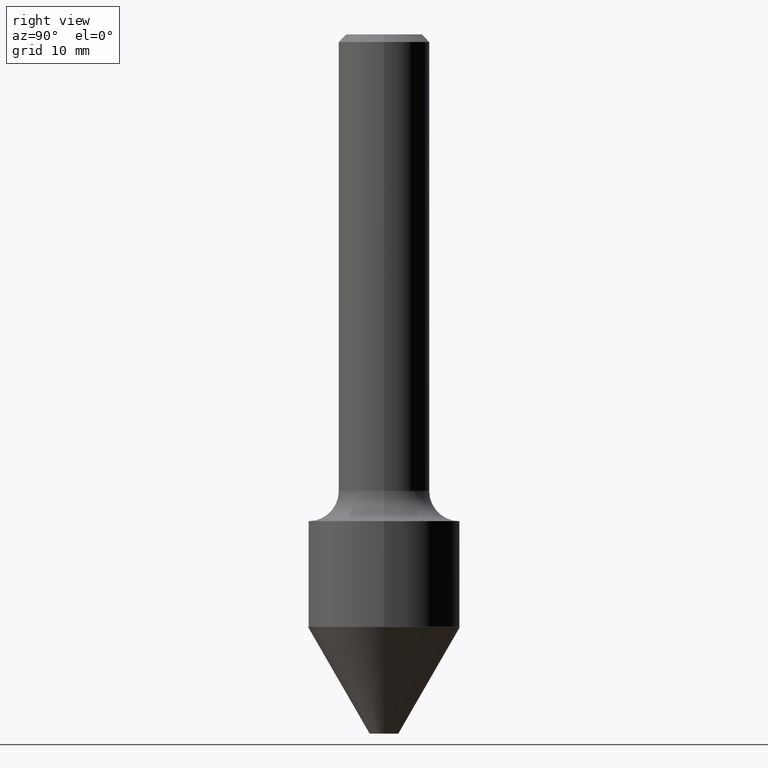
[diagram: clean part render]
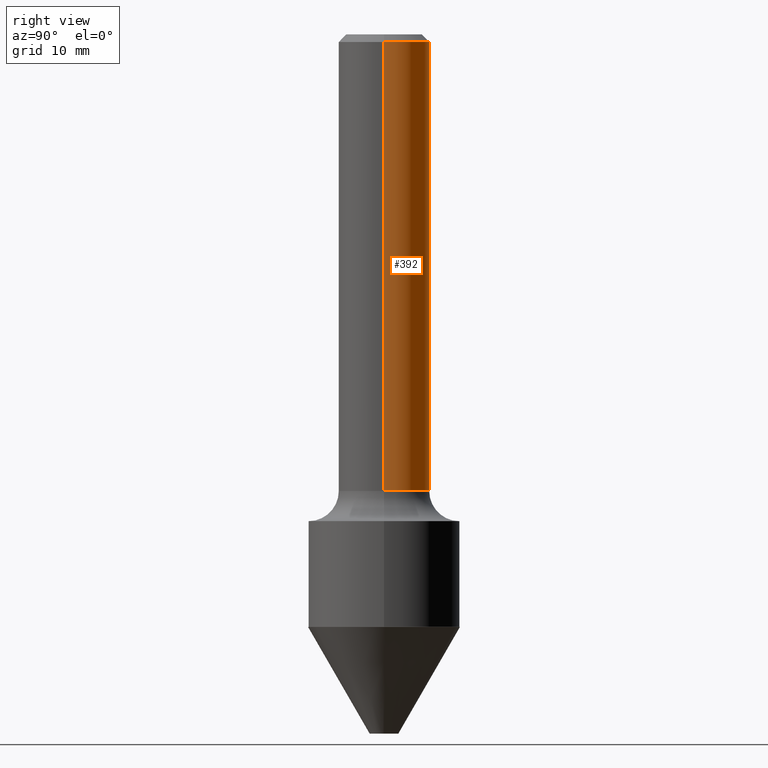
[diagram: same view with one face highlighted and labeled with its STEP entity id]
A machine part, right view. The second image highlights one B-rep face of the part: STEP entity #392.
In plain terms, the highlighted cylindrical surface (partial cylindrical patch) has radius 4.7625 mm, axis along (-0, 0, 1).
Its self-contained STEP definition (entity closure, byte-faithful):
#4 = EDGE_CURVE ( 'NONE', #167, #477, #267, .T. ) ;
#5 = CIRCLE ( 'NONE', #432, 0.1875000000000002498 ) ;
#7 = ORIENTED_EDGE ( 'NONE', *, *, #4, .T. ) ;
#46 = DIRECTION ( 'NONE',  ( -2.445468806185136597E-29, 3.491481338843145583E-15, 1.000000000000000000 ) ) ;
#47 = VERTEX_POINT ( 'NONE', #186 ) ;
#54 = EDGE_CURVE ( 'NONE', #47, #96, #102, .T. ) ;
#59 = DIRECTION ( 'NONE',  ( -2.445468806185136877E-29, 3.491481338843145188E-15, 1.000000000000000000 ) ) ;
#73 = DIRECTION ( 'NONE',  ( 1.000000000000000000, -6.982962677686269077E-15, 0.000000000000000000 ) ) ;
#74 = EDGE_LOOP ( 'NONE', ( #236, #7, #405, #331 ) ) ;
#96 = VERTEX_POINT ( 'NONE', #377 ) ;
#102 = LINE ( 'NONE', #187, #168 ) ;
#115 = DIRECTION ( 'NONE',  ( 1.000000000000000000, -6.982962677686265922E-15, 0.000000000000000000 ) ) ;
#142 = CARTESIAN_POINT ( 'NONE',  ( -0.1875000000000001110, 1.332267629550188637E-15, -9.223003294227953596E-30 ) ) ;
#167 = VERTEX_POINT ( 'NONE', #388 ) ;
#168 = VECTOR ( 'NONE', #420, 39.37007874015748143 ) ;
#174 = DIRECTION ( 'NONE',  ( 1.000000000000000000, -6.982962677686266711E-15, 4.876176775795935793E-29 ) ) ;
#186 = CARTESIAN_POINT ( 'NONE',  ( 0.1875000000000002498, -7.873290419091291906E-15, -1.880000000000000338 ) ) ;
#187 = CARTESIAN_POINT ( 'NONE',  ( 0.1875000000000001110, -1.309305502066175797E-15, 9.142831454617385217E-30 ) ) ;
#208 = CIRCLE ( 'NONE', #389, 0.1875000000000000278 ) ;
#215 = FACE_OUTER_BOUND ( 'NONE', #74, .T. ) ;
#236 = ORIENTED_EDGE ( 'NONE', *, *, #284, .T. ) ;
#259 = CARTESIAN_POINT ( 'NONE',  ( 0.000000000000000000, 0.000000000000000000, 0.000000000000000000 ) ) ;
#267 = LINE ( 'NONE', #142, #299 ) ;
#282 = DIRECTION ( 'NONE',  ( -2.445468806185136597E-29, 3.491481338843145583E-15, 1.000000000000000000 ) ) ;
#284 = EDGE_CURVE ( 'NONE', #47, #167, #5, .T. ) ;
#299 = VECTOR ( 'NONE', #59, 39.37007874015748143 ) ;
#307 = EDGE_CURVE ( 'NONE', #96, #477, #208, .T. ) ;
#322 = CARTESIAN_POINT ( 'NONE',  ( 7.629862675297681829E-31, -1.089342177719069380E-16, -0.03120000000000022755 ) ) ;
#331 = ORIENTED_EDGE ( 'NONE', *, *, #54, .F. ) ;
#363 = AXIS2_PLACEMENT_3D ( 'NONE', #259, #46, #174 ) ;
#371 = CYLINDRICAL_SURFACE ( 'NONE', #363, 0.1875000000000001110 ) ;
#377 = CARTESIAN_POINT ( 'NONE',  ( 0.1875000000000000278, -1.395277592354069315E-15, -0.03120000000000022755 ) ) ;
#388 = CARTESIAN_POINT ( 'NONE',  ( -0.1875000000000002498, -5.005845661302559902E-15, -1.880000000000000338 ) ) ;
#389 = AXIS2_PLACEMENT_3D ( 'NONE', #322, #473, #115 ) ;
#392 = ADVANCED_FACE ( 'NONE', ( #215 ), #371, .T. ) ;
#405 = ORIENTED_EDGE ( 'NONE', *, *, #307, .F. ) ;
#420 = DIRECTION ( 'NONE',  ( -2.445468806185136877E-29, 3.491481338843145188E-15, 1.000000000000000000 ) ) ;
#432 = AXIS2_PLACEMENT_3D ( 'NONE', #470, #282, #73 ) ;
#449 = CARTESIAN_POINT ( 'NONE',  ( -0.1875000000000000278, 1.200371284294268058E-15, -0.03120000000000022755 ) ) ;
#470 = CARTESIAN_POINT ( 'NONE',  ( 4.597481355628058013E-29, -6.563984917025115320E-15, -1.880000000000000338 ) ) ;
#473 = DIRECTION ( 'NONE',  ( -2.445468806185136597E-29, 3.491481338843145583E-15, 1.000000000000000000 ) ) ;
#477 = VERTEX_POINT ( 'NONE', #449 ) ;